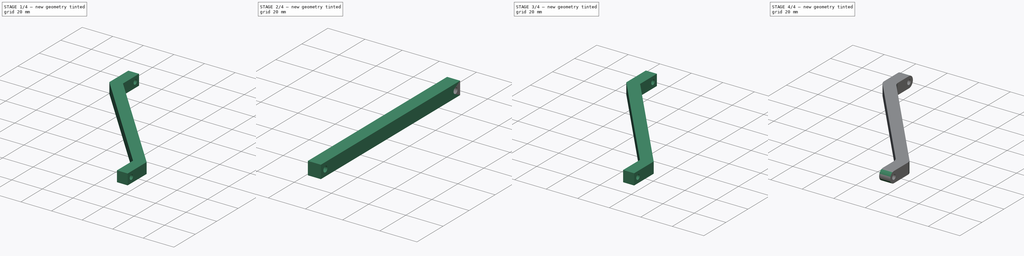
[diagram: build sequence overview — one tinted view per stage of 4, left to right]
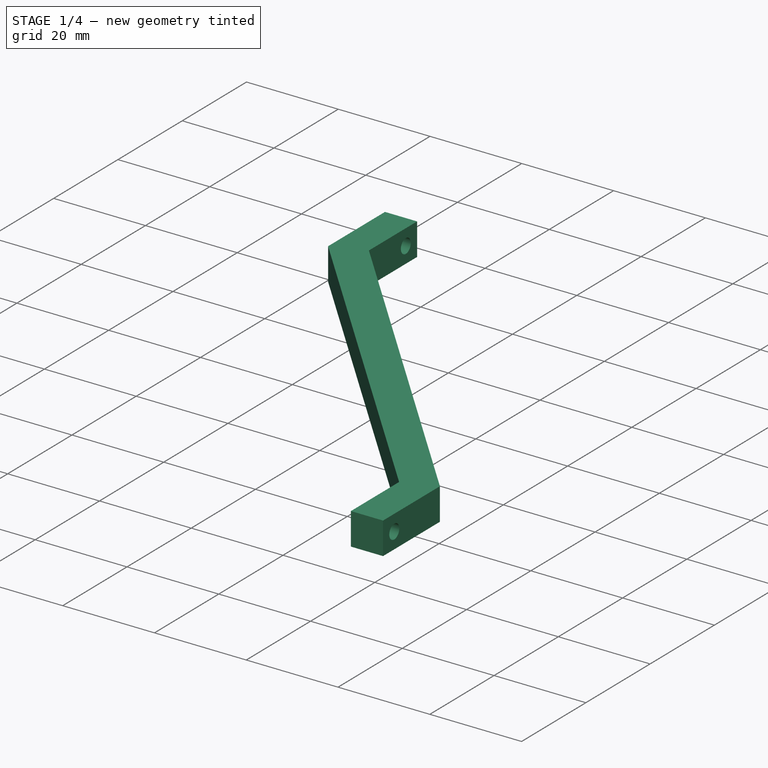
[diagram: stage 1 of 4 — iso view after this stage's code; geometry added in this stage tinted green]
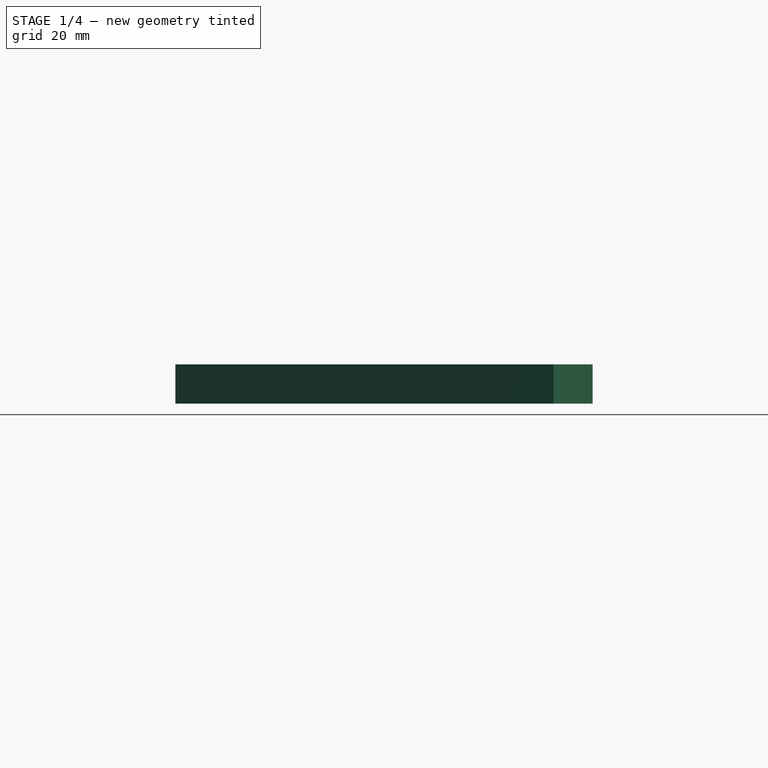
[diagram: stage 1 of 4 — front view after this stage's code; geometry added in this stage tinted green]
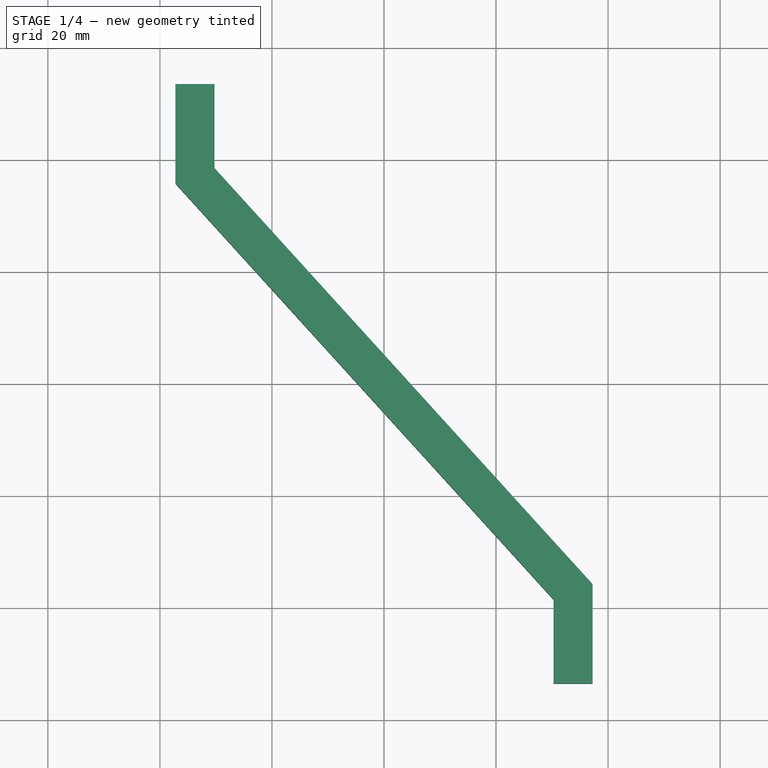
[diagram: stage 1 of 4 — top view after this stage's code; geometry added in this stage tinted green]
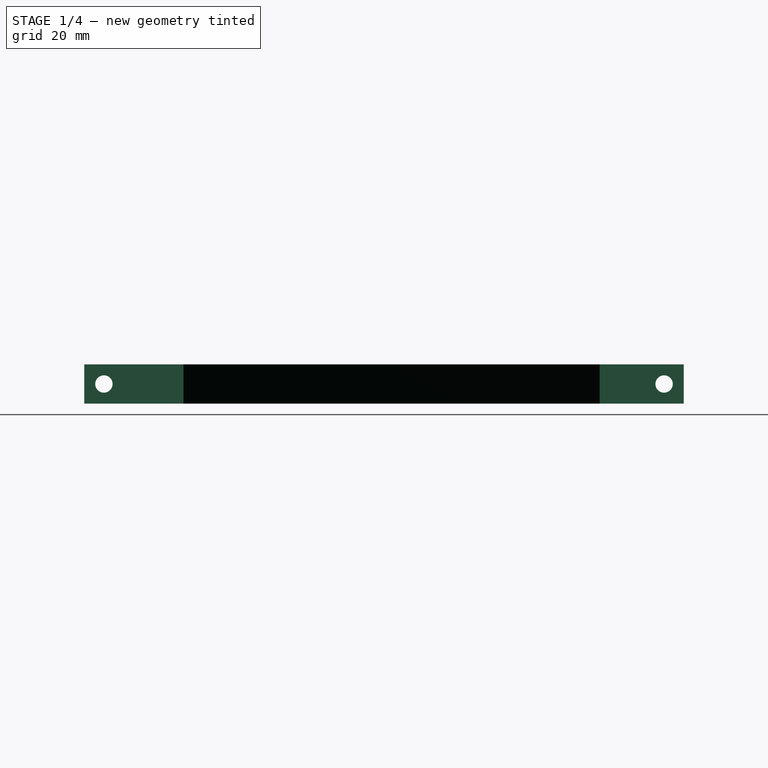
[diagram: stage 1 of 4 — right view after this stage's code; geometry added in this stage tinted green]
FCSTD DOCUMENT  (FreeCAD 1.0R39109 (Git))
Label: haste-Z-2-B
License: All rights reserved
LicenseURL: https://en.wikipedia.org/wiki/All_rights_reserved
objects: Sketcher::SketchObject×8, PartDesign::Pocket×5, PartDesign::Pad×3, PartDesign::Fillet×2, PartDesign::Body×1
note: 47 computed .brp shape members not serialized (recipe doc carries the construction recipe); baked Part::Feature solids carry a one-line shape summary decoded from their .brp

FEATURE [Sketcher::SketchObject] Sketch
  ArcFitTolerance = 1e-06
  AttachmentSupport = -> [XY_Plane]
  FullyConstrained = true
  MakeInternals = false
  MapMode = 5
  sketch-geometry (13):
    g0: LineSegment [constr] StartX=-37.25 StartY=53.5 StartZ=0 EndX=-37.25 EndY=-53.5 EndZ=0
    g1: LineSegment [constr] StartX=-37.25 StartY=-53.5 StartZ=0 EndX=37.25 EndY=-53.5 EndZ=0
    g2: LineSegment [constr] StartX=37.25 StartY=-53.5 StartZ=0 EndX=37.25 EndY=53.5 EndZ=0
    g3: LineSegment [constr] StartX=37.25 StartY=53.5 StartZ=0 EndX=-37.25 EndY=53.5 EndZ=0
    g4: LineSegment StartX=-37.25 StartY=35.795 StartZ=0 EndX=-37.25 EndY=53.5 EndZ=0
    g5: LineSegment StartX=-37.25 StartY=53.5 StartZ=0 EndX=-30.25 EndY=53.5 EndZ=0
    g6: LineSegment StartX=-30.25 StartY=53.5 StartZ=0 EndX=-30.25 EndY=38.5 EndZ=0
    g7: LineSegment StartX=-30.25 StartY=38.5 StartZ=0 EndX=37.25 EndY=-35.795 EndZ=0
    g8: LineSegment StartX=37.25 StartY=-35.795 StartZ=0 EndX=37.25 EndY=-53.5 EndZ=0
    g9: LineSegment StartX=37.25 StartY=-53.5 StartZ=0 EndX=30.25 EndY=-53.5 EndZ=0
    g10: LineSegment StartX=30.25 StartY=-53.5 StartZ=0 EndX=30.25 EndY=-38.5 EndZ=0
    g11: LineSegment StartX=30.25 StartY=-38.5 StartZ=0 EndX=-37.25 EndY=35.795 EndZ=0
    g12: LineSegment [constr] StartX=-3.5 StartY=-1.35252 StartZ=0 EndX=1.681 EndY=3.35463 EndZ=0
  constraints (35):
    c: Coincident(g0,g1)
    c: Coincident(g1,g2)
    c: Coincident(g2,g3)
    c: Coincident(g3,g0)
    c: Vertical(g2)
    c: Horizontal(g1)
    c: Symmetric(g0,g0,g-1)
    c: Symmetric(g0,g2,g-2)
    c: Distance(g3,g3) = 74.5
    c: Distance(g0,g0) = 107
    c: Vertical(g4)
    c: Coincident(g4,g5)
    c: Horizontal(g5)
    c: Coincident(g5,g6)
    c: Vertical(g6)
    c: Coincident(g6,g7)
    c: Coincident(g7,g8)
    c: Vertical(g8)
    c: Coincident(g8,g9)
    c: Horizontal(g9)
    c: Coincident(g9,g10)
    c: Coincident(g10,g11)
    c: Coincident(g11,g4)
    c: Vertical(g10)
    c: Equal(g10,g6)
    c: Equal(g8,g4)
    c: Coincident(g8,g1)
    c: Coincident(g4,g0)
    c: Symmetric(g10,g4,g12)
    c: PointOnObject(g12,g11)
    c: PointOnObject(g12,g7)
    c: Equal(g5,g12)
    c: Equal(g12,g9)
    c: Distance(g5,g5) = 7
    c: Distance(g10,g10) = 15
FEATURE [PartDesign::Pad] Pad
  Direction = (0,0,1)
  Length = 7
  Length2 = 10
  Profile = -> Sketch
  ReferenceAxis = -> Sketch [N_Axis]
  Refine = true
  Suppressed = false
  Type = 0
FEATURE [Sketcher::SketchObject] Sketch001
  ArcFitTolerance = 1e-06
  AttachmentSupport = -> [Pad]
  ExternalGeometry = -> [Pad]
  FullyConstrained = true
  MakeInternals = false
  MapMode = 5
  Placement = pos=(-37.25,0,0) rot=(0.57735,-0.57735,-0.57735;2.0944rad)
  sketch-geometry (4):
    g0: Circle [constr] CenterX=-50 CenterY=3.5 CenterZ=0 NormalX=0 NormalY=0 NormalZ=1 AngleXU=0 Radius=3.5
    g1: Circle [constr] CenterX=50 CenterY=3.5 CenterZ=0 NormalX=0 NormalY=0 NormalZ=1 AngleXU=0 Radius=3.5
    g2: Circle CenterX=-50 CenterY=3.5 CenterZ=0 NormalX=0 NormalY=0 NormalZ=1 AngleXU=0 Radius=1.55
    g3: Circle CenterX=50 CenterY=3.5 CenterZ=0 NormalX=0 NormalY=0 NormalZ=1 AngleXU=0 Radius=1.55
  constraints (10):
    c: Tangent(g1,g-6)
    c: Tangent(g1,g-7)
    c: Tangent(g-8,g1)
    c: Tangent(g0,g-3)
    c: Tangent(g0,g-4)
    c: Tangent(g0,g-5)
    c: Coincident(g2,g0)
    c: Coincident(g3,g1)
    c: Equal(g3,g2)
    c: Diameter(g3) = 3.1
FEATURE [PartDesign::Pocket] Pocket
  BaseFeature = -> Pad
  Direction = (1,0,0)
  Length = 5
  Length2 = 5
  Profile = -> Sketch001
  ReferenceAxis = -> Sketch001 [N_Axis]
  Refine = true
  Suppressed = false
  Type = 1
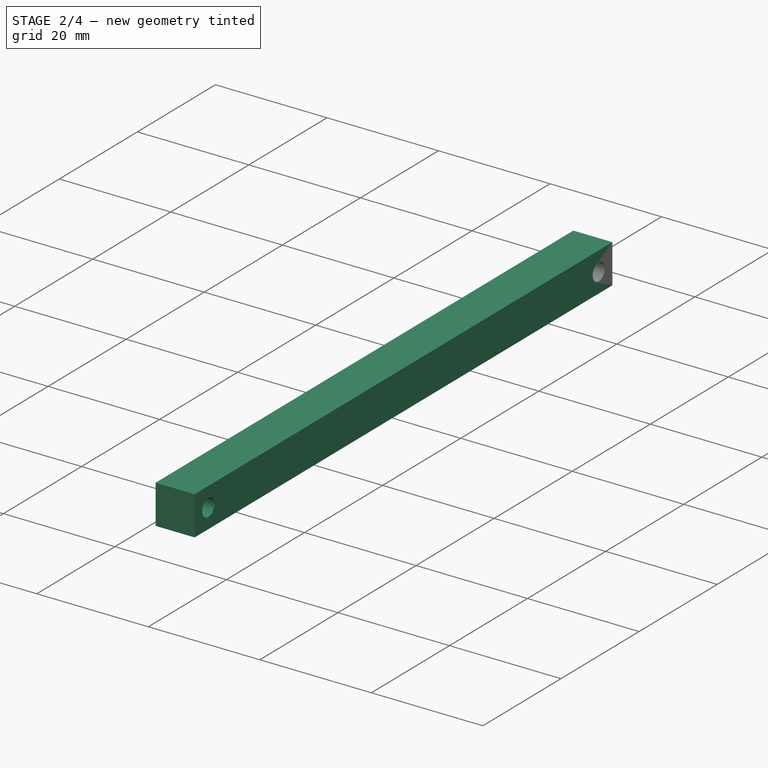
[diagram: stage 2 of 4 — iso view after this stage's code; geometry added in this stage tinted green]
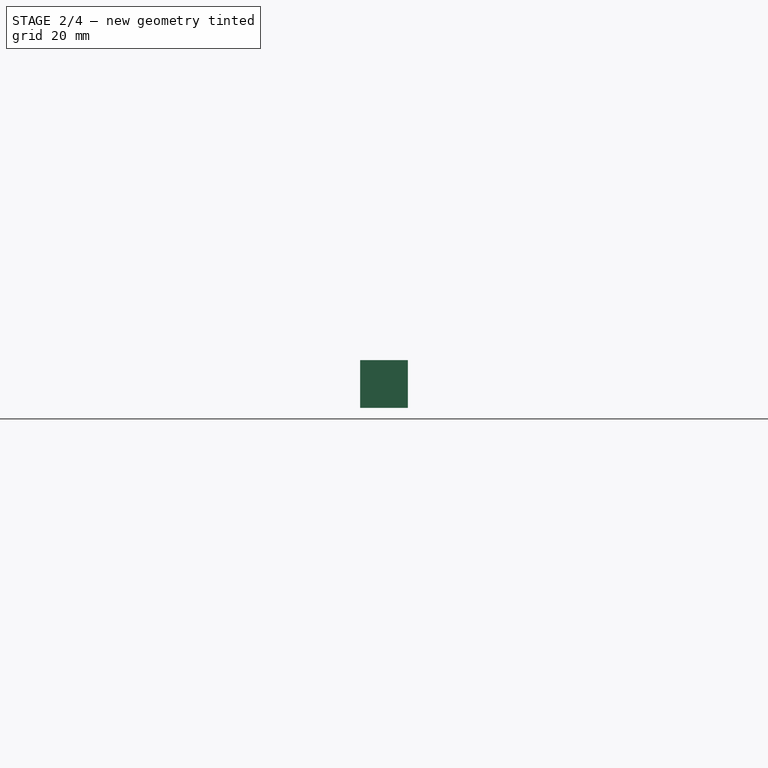
[diagram: stage 2 of 4 — front view after this stage's code; geometry added in this stage tinted green]
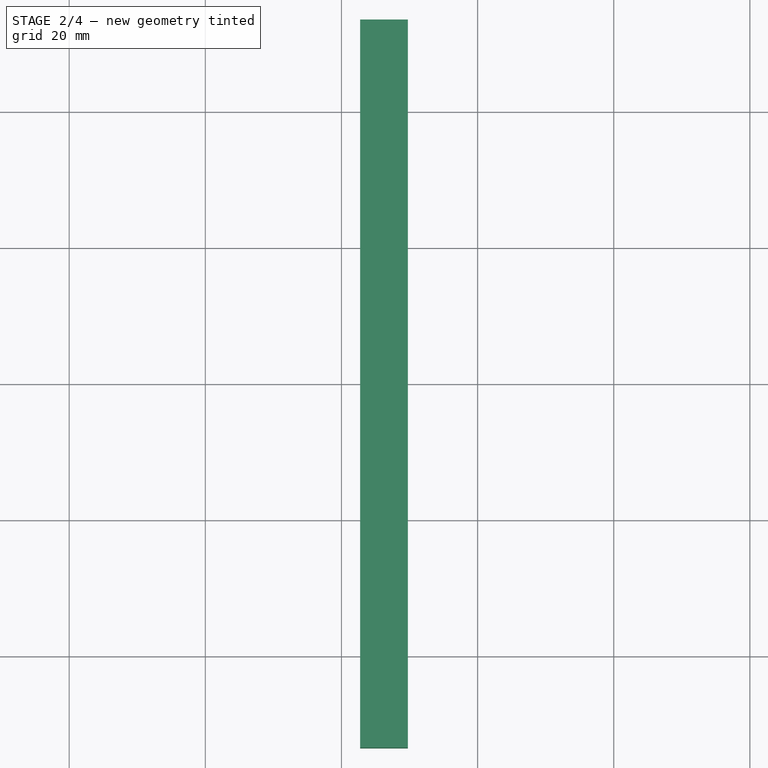
[diagram: stage 2 of 4 — top view after this stage's code; geometry added in this stage tinted green]
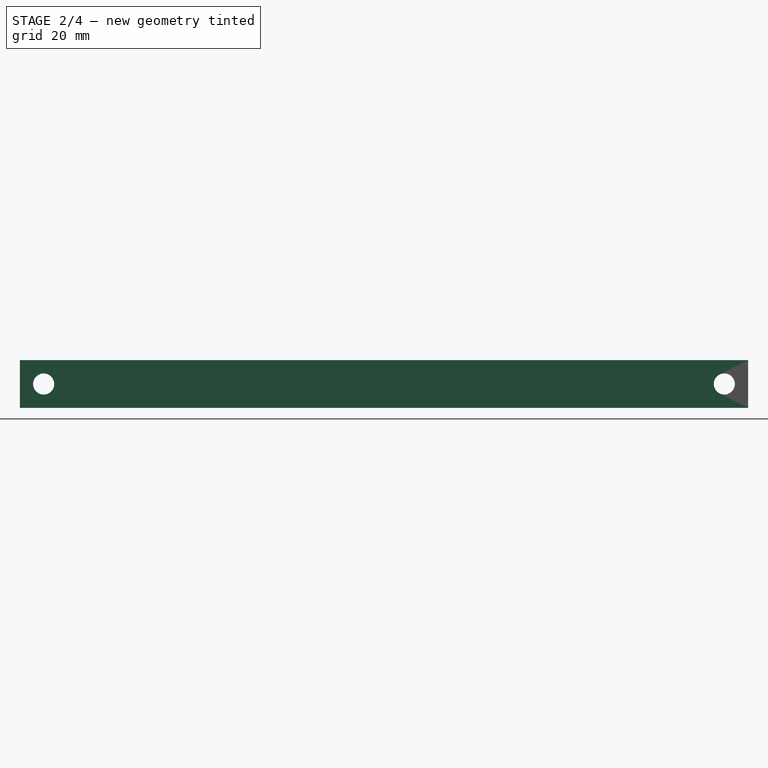
[diagram: stage 2 of 4 — right view after this stage's code; geometry added in this stage tinted green]
FEATURE [Sketcher::SketchObject] Sketch002
  ArcFitTolerance = 1e-06
  AttachmentSupport = -> [Pocket]
  ExternalGeometry = -> [Pocket]
  FullyConstrained = true
  MakeInternals = false
  MapMode = 5
  Placement = pos=(0,0,7) rot=(0,0,1;0rad)
  sketch-geometry (4):
    g0: LineSegment StartX=-37.25 StartY=35.795 StartZ=0 EndX=-37.25 EndY=-53.5 EndZ=0
    g1: LineSegment StartX=-37.25 StartY=-53.5 StartZ=0 EndX=-30.25 EndY=-53.5 EndZ=0
    g2: LineSegment StartX=-30.25 StartY=-53.5 StartZ=0 EndX=-30.25 EndY=35.795 EndZ=0
    g3: LineSegment StartX=-30.25 StartY=35.795 StartZ=0 EndX=-37.25 EndY=35.795 EndZ=0
  constraints (11):
    c: Coincident(g0,g1)
    c: Coincident(g1,g2)
    c: Coincident(g2,g3)
    c: Coincident(g3,g0)
    c: Vertical(g0)
    c: Vertical(g2)
    c: Horizontal(g1)
    c: Horizontal(g3)
    c: Coincident(g0,g-4)
    c: Vertical(g2,g-5)
    c: Horizontal(g1,g-6)
FEATURE [PartDesign::Pad] Pad001
  BaseFeature = -> Pocket
  Direction = (0,0,1)
  Length = 10
  Length2 = 10
  Profile = -> Sketch002
  ReferenceAxis = -> Sketch002 [N_Axis]
  Refine = true
  Suppressed = false
  Type = 3
  UpToFace = -> Pocket [Face3]
FEATURE [PartDesign::Pocket] Pocket001
  BaseFeature = -> Pad001
  Direction = (-1,0,0)
  Length = 5
  Length2 = 5
  Profile = -> Pad001 [Edge17]
  Refine = true
  Suppressed = false
  Type = 1
FEATURE [Sketcher::SketchObject] Sketch003
  ArcFitTolerance = 1e-06
  AttachmentSupport = -> [Pocket001]
  ExternalGeometry = -> [Pocket001]
  FullyConstrained = true
  MakeInternals = false
  MapMode = 5
  Placement = pos=(0,0,7) rot=(0,0,1;0rad)
  sketch-geometry (8):
    g0: LineSegment StartX=-37.25 StartY=53.5 StartZ=0 EndX=-37.25 EndY=-53.5 EndZ=0
    g1: LineSegment StartX=-37.25 StartY=-53.5 StartZ=0 EndX=37.25 EndY=-53.5 EndZ=0
    g2: LineSegment StartX=37.25 StartY=-53.5 StartZ=0 EndX=37.25 EndY=53.5 EndZ=0
    g3: LineSegment StartX=37.25 StartY=53.5 StartZ=0 EndX=-37.25 EndY=53.5 EndZ=0
    g4: LineSegment StartX=37.25 StartY=-35.795 StartZ=0 EndX=-37.25 EndY=-35.795 EndZ=0
    g5: LineSegment StartX=-37.25 StartY=-35.795 StartZ=0 EndX=-37.25 EndY=-53.5 EndZ=0
    g6: LineSegment StartX=-37.25 StartY=-53.5 StartZ=0 EndX=37.25 EndY=-53.5 EndZ=0
    g7: LineSegment StartX=37.25 StartY=-53.5 StartZ=0 EndX=37.25 EndY=-35.795 EndZ=0
  constraints (20):
    c: Coincident(g0,g1)
    c: Coincident(g1,g2)
    c: Coincident(g2,g3)
    c: Coincident(g3,g0)
    c: Vertical(g0)
    c: Vertical(g2)
    c: Horizontal(g1)
    c: Horizontal(g3)
    c: Coincident(g1,g-4)
    c: Coincident(g0,g-3)
    c: Coincident(g4,g5)
    c: Coincident(g5,g6)
    c: Coincident(g6,g7)
    c: Coincident(g7,g4)
    c: Horizontal(g4)
    c: Horizontal(g6)
    c: Vertical(g5)
    c: Vertical(g7)
    c: Coincident(g4,g-4)
    c: Coincident(g5,g0)
FEATURE [Sketcher::SketchObject] Sketch004
  ArcFitTolerance = 1e-06
  AttachmentSupport = -> [Pocket001]
  ExternalGeometry = -> [Sketch003,Pocket001]
  FullyConstrained = true
  MakeInternals = false
  MapMode = 5
  Placement = pos=(0,0,7) rot=(0,0,1;0rad)
  sketch-geometry (4):
    g0: LineSegment StartX=-30.25 StartY=53.5 StartZ=0 EndX=-30.25 EndY=-53.5 EndZ=0
    g1: LineSegment StartX=-30.25 StartY=-53.5 StartZ=0 EndX=37.25 EndY=-53.5 EndZ=0
    g2: LineSegment StartX=37.25 StartY=-53.5 StartZ=0 EndX=37.25 EndY=53.5 EndZ=0
    g3: LineSegment StartX=37.25 StartY=53.5 StartZ=0 EndX=-30.25 EndY=53.5 EndZ=0
  constraints (11):
    c: Coincident(g0,g1)
    c: Coincident(g1,g2)
    c: Coincident(g2,g3)
    c: Coincident(g3,g0)
    c: Vertical(g0)
    c: Vertical(g2)
    c: Horizontal(g1)
    c: Horizontal(g3)
    c: Coincident(g1,g-3)
    c: PointOnObject(g0,g-4)
    c: PointOnObject(g0,g-5)
FEATURE [PartDesign::Pocket] Pocket002
  BaseFeature = -> Pocket001
  Direction = (0,0,-1)
  Length = 5
  Length2 = 5
  Profile = -> Sketch004
  ReferenceAxis = -> Sketch004 [N_Axis]
  Refine = true
  Suppressed = false
  Type = 1
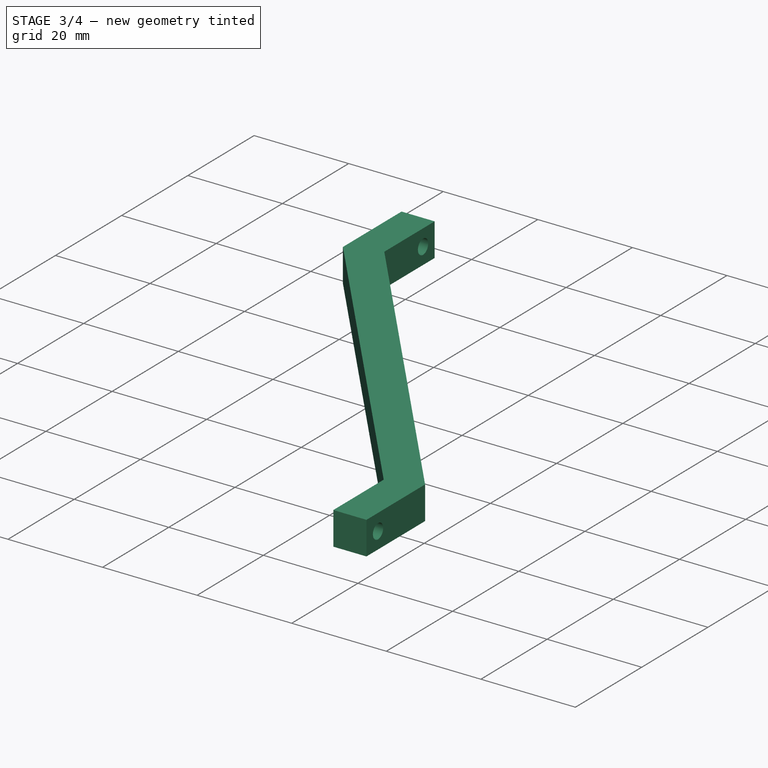
[diagram: stage 3 of 4 — iso view after this stage's code; geometry added in this stage tinted green]
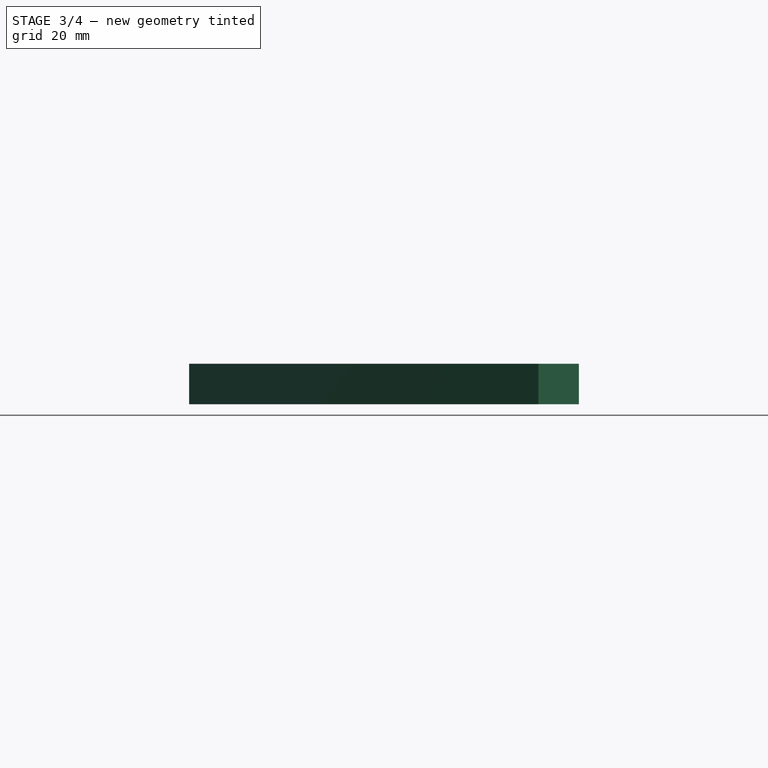
[diagram: stage 3 of 4 — front view after this stage's code; geometry added in this stage tinted green]
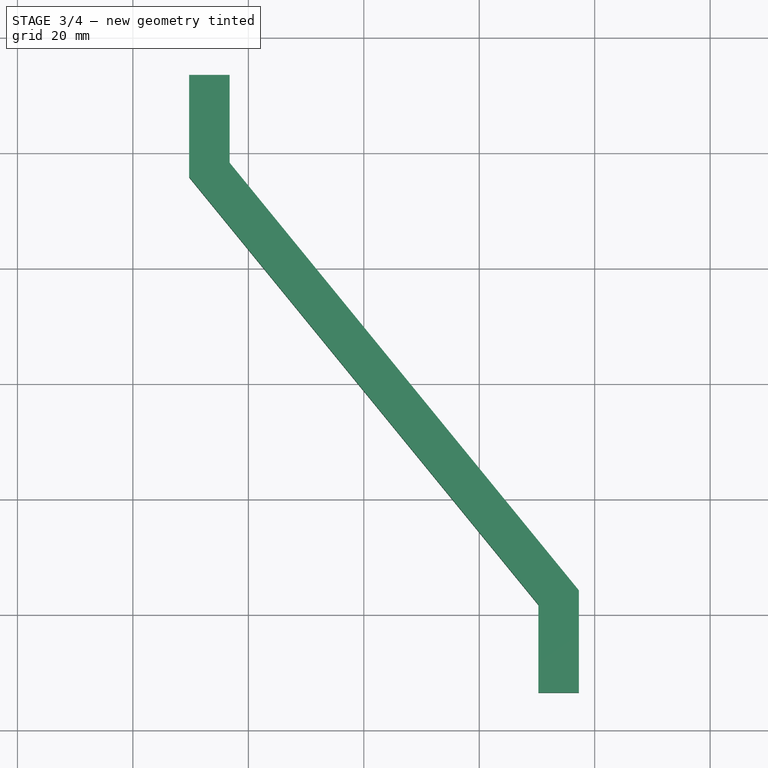
[diagram: stage 3 of 4 — top view after this stage's code; geometry added in this stage tinted green]
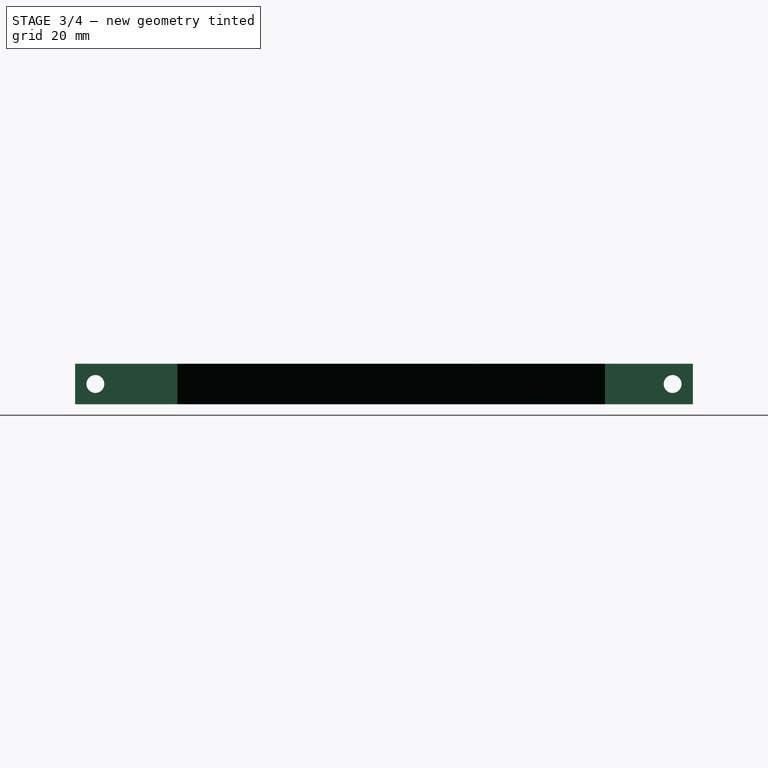
[diagram: stage 3 of 4 — right view after this stage's code; geometry added in this stage tinted green]
FEATURE [Sketcher::SketchObject] Sketch005
  ArcFitTolerance = 1e-06
  AttachmentSupport = -> [Pocket002]
  ExternalGeometry = -> [Pocket002,Sketch003]
  FullyConstrained = true
  MakeInternals = false
  MapMode = 5
  Placement = pos=(0,0,7) rot=(0,0,1;0rad)
  sketch-geometry (11):
    g0: LineSegment StartX=37.25 StartY=-53.5 StartZ=0 EndX=37.25 EndY=-35.795 EndZ=0
    g1: LineSegment [constr] StartX=37.25 StartY=-35.795 StartZ=0 EndX=30.25 EndY=-35.795 EndZ=0
    g2: LineSegment StartX=30.25 StartY=-53.5 StartZ=0 EndX=37.25 EndY=-53.5 EndZ=0
    g3: LineSegment [constr] StartX=-30.25 StartY=38.29 StartZ=0 EndX=-23.25 EndY=38.29 EndZ=0
    g4: LineSegment StartX=-23.25 StartY=38.29 StartZ=0 EndX=-23.25 EndY=53.5 EndZ=0
    g5: LineSegment StartX=-23.25 StartY=53.5 StartZ=0 EndX=-30.25 EndY=53.5 EndZ=0
    g6: LineSegment StartX=-30.25 StartY=53.5 StartZ=0 EndX=-30.25 EndY=35.795 EndZ=0
    g7: LineSegment StartX=30.25 StartY=-53.5 StartZ=0 EndX=30.25 EndY=-38.29 EndZ=0
    g8: LineSegment StartX=-30.25 StartY=35.795 StartZ=0 EndX=30.25 EndY=-38.29 EndZ=0
    g9: LineSegment StartX=-23.25 StartY=38.29 StartZ=0 EndX=37.25 EndY=-35.795 EndZ=0
    g10: LineSegment [constr] StartX=-1.18e-14 StartY=-1.24754 StartZ=0 EndX=5.42182 EndY=3.18009 EndZ=0
  constraints (31):
    c: Coincident(g0,g1)
    c: Coincident(g2,g0)
    c: Vertical(g0)
    c: Horizontal(g1)
    c: Horizontal(g2)
    c: Equal(g-5,g2)
    c: Coincident(g0,g-7)
    c: PointOnObject(g1,g-8)
    c: Coincident(g3,g4)
    c: Coincident(g4,g5)
    c: Vertical(g4)
    c: Horizontal(g3)
    c: Horizontal(g5)
    c: Equal(g5,g2)
    c: Coincident(g6,g5)
    c: Coincident(g7,g2)
    c: PointOnObject(g1,g7)
    c: PointOnObject(g3,g6)
    c: Equal(g1,g3)
    c: Equal(g3,g2)
    c: Coincident(g8,g6)
    c: Coincident(g8,g7)
    c: Coincident(g9,g3)
    c: Coincident(g9,g0)
    c: Parallel(g8,g9)
    c: Symmetric(g6,g7,g10)
    c: PointOnObject(g10,g8)
    c: PointOnObject(g10,g9)
    c: Equal(g10,g3)
    c: Equal(g7,g4)
    c: Coincident(g5,g-3)
FEATURE [PartDesign::Pad] Pad002
  BaseFeature = -> Pocket002
  Direction = (0,0,1)
  Length = 10
  Length2 = 10
  Profile = -> Sketch005
  ReferenceAxis = -> Sketch005 [N_Axis]
  Refine = true
  Suppressed = false
  Type = 3
  UpToFace = -> Pocket002 [Face3]
FEATURE [Sketcher::SketchObject] Sketch006
  ArcFitTolerance = 1e-06
  AttachmentSupport = -> [Pad002]
  ExternalGeometry = -> [Pad002]
  FullyConstrained = true
  MakeInternals = false
  MapMode = 5
  Placement = pos=(-37.25,0,0) rot=(0.57735,-0.57735,-0.57735;2.0944rad)
  sketch-geometry (2):
    g0: Circle CenterX=50 CenterY=3.5 CenterZ=0 NormalX=0 NormalY=0 NormalZ=1 AngleXU=0 Radius=1.55
    g1: Circle CenterX=-50 CenterY=3.5 CenterZ=0 NormalX=0 NormalY=0 NormalZ=1 AngleXU=0 Radius=1.55
  constraints (4):
    c: Coincident(g0,g-3)
    c: Equal(g0,g-3)
    c: Coincident(g1,g-4)
    c: Equal(g-4,g1)
FEATURE [PartDesign::Pocket] Pocket003
  BaseFeature = -> Pad002
  Direction = (1,0,0)
  Length = 5
  Length2 = 5
  Profile = -> Sketch006
  ReferenceAxis = -> Sketch006 [N_Axis]
  Refine = true
  Suppressed = false
  Type = 1
FEATURE [Sketcher::SketchObject] Sketch007
  ArcFitTolerance = 1e-06
  AttachmentSupport = -> [Pocket003]
  ExternalGeometry = -> [Pocket003]
  FullyConstrained = true
  MakeInternals = false
  MapMode = 5
  Placement = pos=(0,0,7) rot=(0,0,1;0rad)
  sketch-geometry (4):
    g0: LineSegment StartX=-30.25 StartY=-53.5 StartZ=0 EndX=-30.25 EndY=53.5 EndZ=0
    g1: LineSegment StartX=-30.25 StartY=53.5 StartZ=0 EndX=-37.25 EndY=53.5 EndZ=0
    g2: LineSegment StartX=-37.25 StartY=53.5 StartZ=0 EndX=-37.25 EndY=-53.5 EndZ=0
    g3: LineSegment StartX=-37.25 StartY=-53.5 StartZ=0 EndX=-30.25 EndY=-53.5 EndZ=0
  constraints (10):
    c: Coincident(g0,g1)
    c: Coincident(g1,g2)
    c: Coincident(g2,g3)
    c: Coincident(g3,g0)
    c: Vertical(g0)
    c: Vertical(g2)
    c: Horizontal(g1)
    c: Horizontal(g3)
    c: Coincident(g0,g-4)
    c: Coincident(g1,g-3)
FEATURE [PartDesign::Pocket] Pocket004
  BaseFeature = -> Pocket003
  Direction = (0,0,-1)
  Length = 5
  Length2 = 5
  Profile = -> Sketch007
  ReferenceAxis = -> Sketch007 [N_Axis]
  Refine = true
  Suppressed = false
  Type = 1
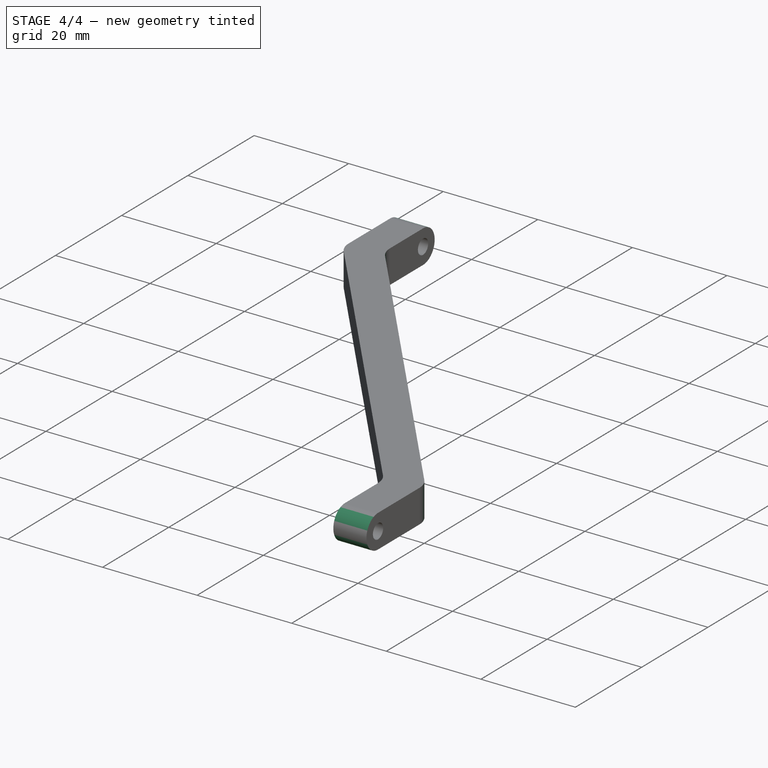
[diagram: stage 4 of 4 — iso view after this stage's code; geometry added in this stage tinted green]
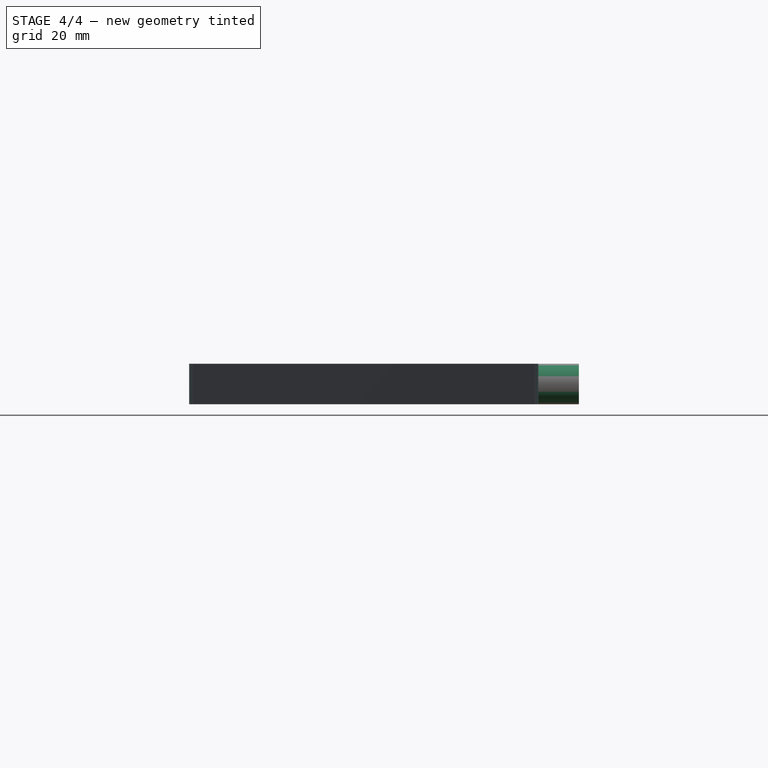
[diagram: stage 4 of 4 — front view after this stage's code; geometry added in this stage tinted green]
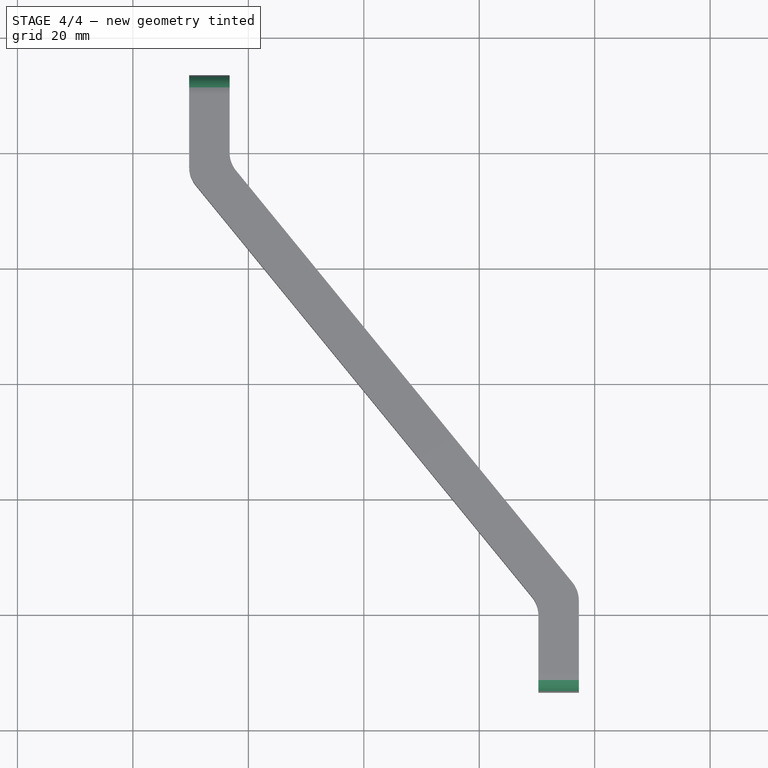
[diagram: stage 4 of 4 — top view after this stage's code; geometry added in this stage tinted green]
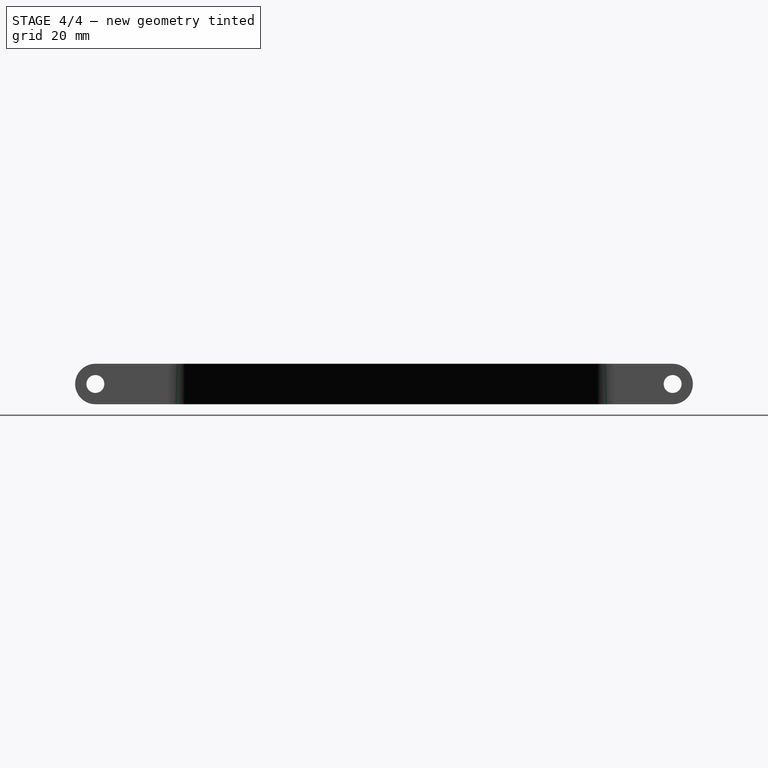
[diagram: stage 4 of 4 — right view after this stage's code; geometry added in this stage tinted green]
FEATURE [PartDesign::Fillet] Fillet
  Base = -> Pocket004 [Edge25,Edge7,Edge15,Edge3]
  BaseFeature = -> Pocket004
  Radius = 3.4999
  Refine = true
  SupportTransform = false
  Suppressed = false
  UseAllEdges = false
FEATURE [PartDesign::Fillet] Fillet001
  Base = -> Fillet [Edge18,Edge30,Edge21,Edge11]
  BaseFeature = -> Fillet
  Radius = 5
  Refine = true
  SupportTransform = false
  Suppressed = false
  UseAllEdges = false
FEATURE [PartDesign::Body] Body  label="Corpo"
  AllowCompound = false
  Group = -> [Sketch,Pad,Sketch001,Pocket,Sketch002,Pad001,Pocket001,Sketch003,Sketch004,Pocket002,Sketch005,Pad002,Sketch006,Pocket003,Sketch007,Pocket004,Fillet,Fillet001]
  Origin = -> Origin
  Tip = -> Fillet001
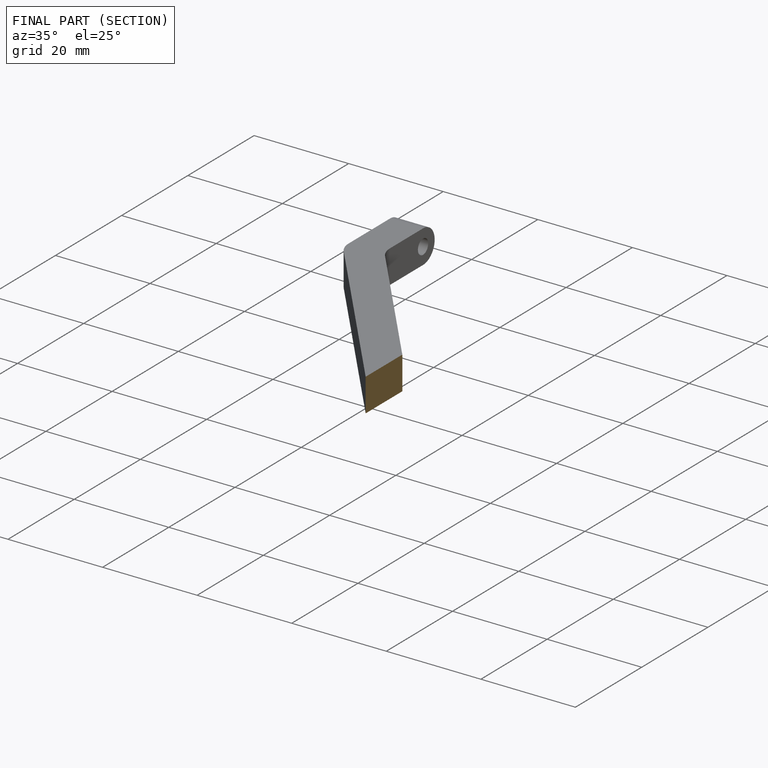
[diagram: finished part — half-section view (interior)]
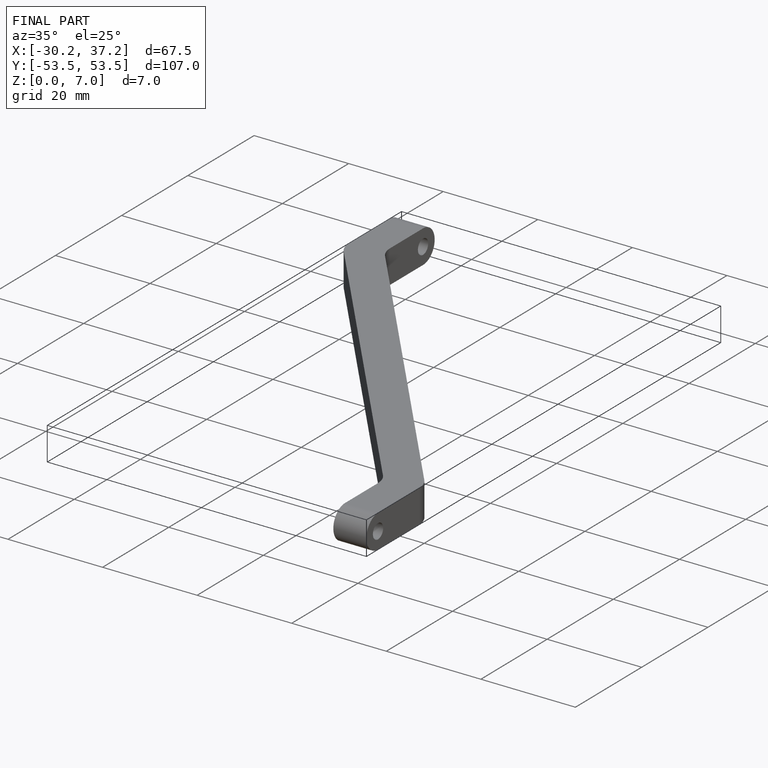
[diagram: finished part — iso view with bounding-box wireframe]
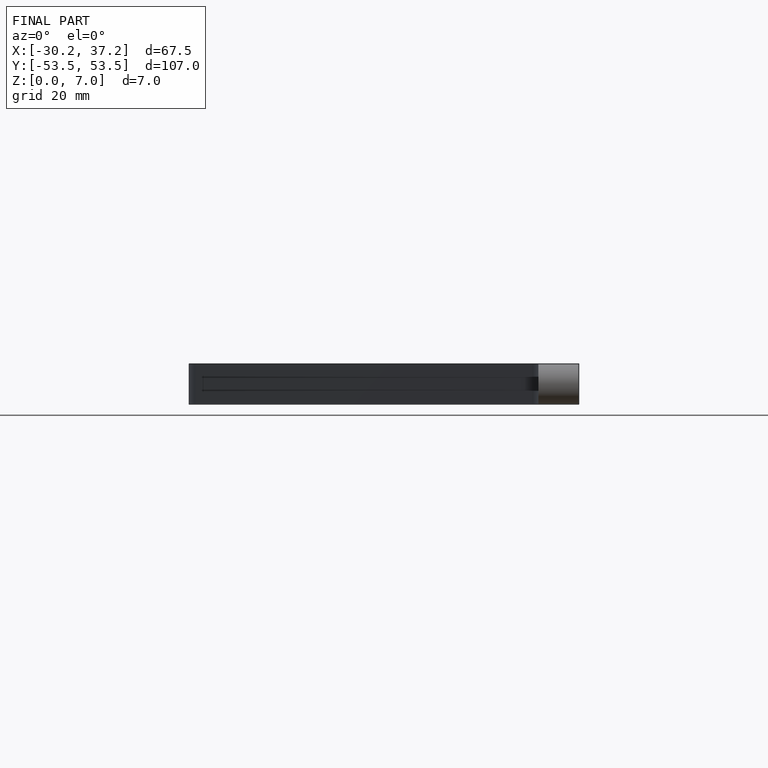
[diagram: finished part — front view with bounding-box wireframe]
